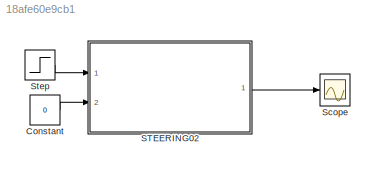
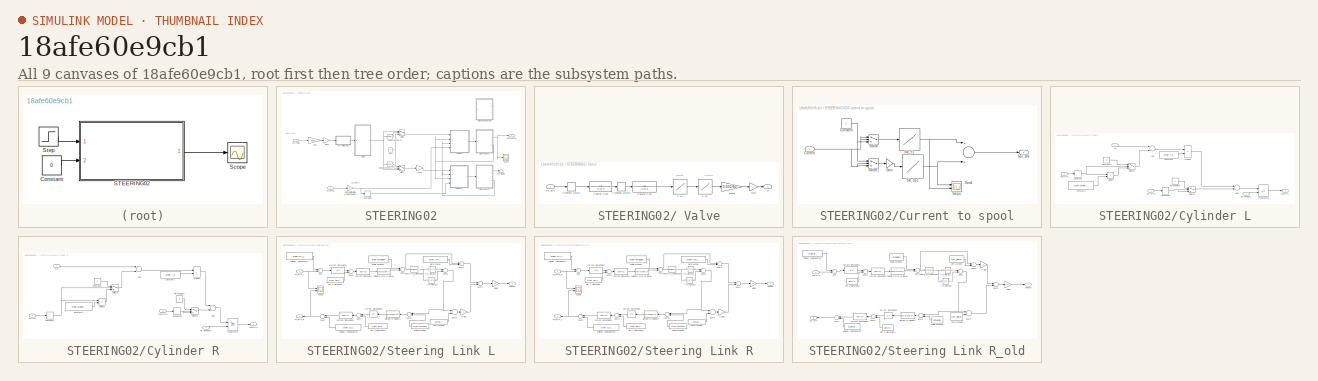
[diagram: thumbnail index - all 9 canvases of the model, root first then tree order]
MODEL slx_18afe60e9cb1
KIND model
CONFIG AbsTol = auto
CONFIG EnableMultiTasking = off
CONFIG FixedStep = auto
CONFIG MaxStep = auto
CONFIG MinStep = auto
CONFIG RelTol = 1e-3
CONFIG SampleTimeConstraint = Unconstrained
CONFIG Solver = VariableStepAuto
CONFIG SolverName = VariableStepAuto
CONFIG StartTime = 0.0
CONFIG StopTime = 10.0
BLOCK [Constant] Constant
  Value = 0
BLOCK [SubSystem] STEERING02
  Description = Current: STバルブスプール電流の (右出\nST_0: ステア角 初期値
  Ports = [2, 1]
  RequestExecContextInheritance = off
  ShowPortLabels = SignalName
BLOCK [SubSystem] STEERING02/ Valve
  Ports = [1, 1]
  RequestExecContextInheritance = off
BLOCK [Gain] STEERING02/ Valve/Gain
  Gain = 7
  OutDataTypeStr = Inherit: Inherit via internal rule
  ParamDataTypeStr = Inherit: Inherit via internal rule
  SaturateOnIntegerOverflow = off
BLOCK [Gain] STEERING02/ Valve/Gain5
  Gain = 0.001/60
BLOCK [Lookup] STEERING02/ Valve/P-L1
  InputValues = [-7 -6 -5.5 -5 -4 -3 -2 0 2 3 4 5 5.5 6 7]
  Table = [-35 -15 -9 -7.4 -4.2 -1.4 0 0 0 1.4 4.2 7.4 9 15 35]
BLOCK [Lookup] STEERING02/ Valve/P-L3
  InputValues = [-35 -15 -7.4 -5.8 -4.2 -2.8 -1.4 -0.7 -0.28 0 0.28 0.7 1.4 2.8 4.2 5.8 7.4 15 35]
  Table = [-35.5 -15.3 -9.7 -7.4 -5.4 -3.6 -2.15 -1.1 -0.6 0 0.6 1.1 2.15 3.6 5.4 7.4 9.7 15.3 35.5]
BLOCK [Outport] STEERING02/ Valve/Q
  IconDisplay = Port number
BLOCK [Inport] STEERING02/ Valve/Spl_strk
  IconDisplay = Port number
BLOCK [TransferFcn] STEERING02/ Valve/Transfer Fcn1
  Denominator = [0.02 1]
BLOCK [TransferFcn] STEERING02/ Valve/Transfer Fcn2
  Denominator = [0.06 1]
BLOCK [TransportDelay] STEERING02/ Valve/Transport Delay1
  DelayTime = 0.1
  Ports = [1, 1]
BLOCK [TransportDelay] STEERING02/ Valve/Transport Delay2
  DelayTime = 0.05
  Ports = [1, 1]
BLOCK [Reference] STEERING02/Compare To Zero1  REF=simulink/Logic and Bit
Operations/Compare
To Zero
  Ports = [1, 1]
  SourceBlock = simulink/Logic and Bit\nOperations/Compare\nTo Zero
  SourceProductBaseCode = SL
  SourceProductName = Simulink
  SourceType = Compare To Zero
BLOCK [Reference] STEERING02/Compare To Zero2  REF=simulink/Logic and Bit
Operations/Compare
To Zero
  Ports = [1, 1]
  SourceBlock = simulink/Logic and Bit\nOperations/Compare\nTo Zero
  SourceProductBaseCode = SL
  SourceProductName = Simulink
  SourceType = Compare To Zero
BLOCK [SubSystem] STEERING02/Current to spool
  Ports = [1, 1]
  RequestExecContextInheritance = off
BLOCK [Constant] STEERING02/Current to spool/Constant
  Value = 0
BLOCK [Inport] STEERING02/Current to spool/Current
  IconDisplay = Port number
BLOCK [Gain] STEERING02/Current to spool/Gain
  Gain = -1
  OutDataTypeStr = Inherit: Inherit via internal rule
  ParamDataTypeStr = Inherit: Inherit via internal rule
  SaturateOnIntegerOverflow = off
BLOCK [Scope] STEERING02/Current to spool/Scope
  Floating = off
  NumInputPorts = 2
  Ports = [2]
  ScopeSpecificationString = C++SS(StrPVP('Location','[1585, 68, 2247, 528]'),StrPVP('Open','off'),StrPVP('ZoomMode','yonly'),MxPVP('AxesTitles',53,'struct(''axes1'',''%<SignalLabel>'',''axes2'',''%<SignalLabel>'')'),StrPVP('YMin','-5~-5'),StrPVP('YMax','5~5'),StrPVP('SaveName','ScopeData4'),StrPVP('DataFormat','StructureWithTime'),StrPVP('BlockParamSampleTime','0'),StrPVP('LimitDataPoints','on'),StrPVP('Decimation','1'),StrP...<+34ch>
BLOCK [Outport] STEERING02/Current to spool/Spl_strk
  IconDisplay = Port number
BLOCK [Sum] STEERING02/Current to spool/Sum1
  InputSameDT = off
  OutDataTypeStr = Inherit: Inherit via internal rule
  Ports = [2, 1]
BLOCK [Switch] STEERING02/Current to spool/Switch
  InputSameDT = off
  SaturateOnIntegerOverflow = off
BLOCK [Switch] STEERING02/Current to spool/Switch1
  InputSameDT = off
  SaturateOnIntegerOverflow = off
BLOCK [Lookup] STEERING02/Current to spool/bkt_dp1
  InputValues = [0 400 450 500 550 600 650 1000]
  Table = [0 -2 -3 -4 -5 -6 -7 -7]
BLOCK [Lookup] STEERING02/Current to spool/bkt_tl1
  InputValues = [0 400 450 500 550 600 650 1000]
  Table = [0 2 3 4 5 6 7 7]
BLOCK [Inport] STEERING02/Current[A]
  IconDisplay = Port number
BLOCK [SubSystem] STEERING02/Cylinder L
  Ports = [4, 1]
  RequestExecContextInheritance = off
BLOCK [Sum] STEERING02/Cylinder L/Add
  InputSameDT = off
  OutDataTypeStr = Inherit: Inherit via internal rule
  Ports = [2, 1]
  SaturateOnIntegerOverflow = off
BLOCK [Sum] STEERING02/Cylinder L/Add1
  InputSameDT = off
  OutDataTypeStr = Inherit: Inherit via internal rule
  Ports = [2, 1]
  SaturateOnIntegerOverflow = off
BLOCK [Constant] STEERING02/Cylinder L/Constant3
  Value = steer.alpha*steer.Ap
BLOCK [Constant] STEERING02/Cylinder L/Constant5
  Value = steer.Ap
BLOCK [Constant] STEERING02/Cylinder L/Constant6
  Value = 0
BLOCK [Inport] STEERING02/Cylinder L/CylL strk1
  IconDisplay = Port number
  Port = 3
BLOCK [Inport] STEERING02/Cylinder L/CylR strk
  IconDisplay = Port number
  Port = 2
BLOCK [Outport] STEERING02/Cylinder L/Cyl_strk_L
  IconDisplay = Port number
BLOCK [Derivative] STEERING02/Cylinder L/Derivative
BLOCK [Derivative] STEERING02/Cylinder L/Derivative1
BLOCK [Product] STEERING02/Cylinder L/Divide1
  InputSameDT = off
  Inputs = **
  OutDataTypeStr = Inherit: Inherit via internal rule
  Ports = [2, 1]
  RndMeth = Floor
  SaturateOnIntegerOverflow = off
BLOCK [Integrator] STEERING02/Cylinder L/Integrator3
  InitialConditionSource = external
  LimitOutput = on
  LowerSaturationLimit = steer.xpmin
  Ports = [2, 1]
  UpperSaturationLimit = steer.xpmax
BLOCK [Product] STEERING02/Cylinder L/Product
  InputSameDT = off
  Inputs = */
  OutDataTypeStr = Inherit: Inherit via internal rule
  Ports = [2, 1]
  SaturateOnIntegerOverflow = off
BLOCK [Inport] STEERING02/Cylinder L/QL
  IconDisplay = Port number
BLOCK [Switch] STEERING02/Cylinder L/Switch1
  Criteria = u2 > Threshold
  InputSameDT = off
  SaturateOnIntegerOverflow = off
BLOCK [Switch] STEERING02/Cylinder L/Switch2
  Criteria = u2 > Threshold
  InputSameDT = off
  SaturateOnIntegerOverflow = off
BLOCK [Constant] STEERING02/Cylinder L/init position1
  Value = 0
BLOCK [Inport] STEERING02/Cylinder L/init positionL
  IconDisplay = Port number
  Port = 4
BLOCK [SubSystem] STEERING02/Cylinder R
  Ports = [4, 1]
  RequestExecContextInheritance = off
BLOCK [Sum] STEERING02/Cylinder R/Add
  InputSameDT = off
  OutDataTypeStr = Inherit: Inherit via internal rule
  Ports = [2, 1]
  SaturateOnIntegerOverflow = off
BLOCK [Sum] STEERING02/Cylinder R/Add1
  InputSameDT = off
  OutDataTypeStr = Inherit: Inherit via internal rule
  Ports = [2, 1]
  SaturateOnIntegerOverflow = off
BLOCK [Constant] STEERING02/Cylinder R/Constant3
  Value = steer.alpha*steer.Ap
BLOCK [Constant] STEERING02/Cylinder R/Constant5
  Value = steer.Ap
BLOCK [Constant] STEERING02/Cylinder R/Constant6
  Value = 0
BLOCK [Inport] STEERING02/Cylinder R/CylL strk
  IconDisplay = Port number
  Port = 2
BLOCK [Outport] STEERING02/Cylinder R/CylR strk
  IconDisplay = Port number
BLOCK [Inport] STEERING02/Cylinder R/CylR strk1
  IconDisplay = Port number
  Port = 3
BLOCK [Derivative] STEERING02/Cylinder R/Derivative
BLOCK [Derivative] STEERING02/Cylinder R/Derivative1
BLOCK [Product] STEERING02/Cylinder R/Divide1
  InputSameDT = off
  Inputs = **
  OutDataTypeStr = Inherit: Inherit via internal rule
  Ports = [2, 1]
  RndMeth = Floor
  SaturateOnIntegerOverflow = off
BLOCK [Integrator] STEERING02/Cylinder R/Integrator3
  InitialConditionSource = external
  LimitOutput = on
  LowerSaturationLimit = steer.xpmin
  Ports = [2, 1]
  UpperSaturationLimit = steer.xpmax
BLOCK [Product] STEERING02/Cylinder R/Product
  InputSameDT = off
  Inputs = */
  OutDataTypeStr = Inherit: Inherit via internal rule
  Ports = [2, 1]
  SaturateOnIntegerOverflow = off
BLOCK [Inport] STEERING02/Cylinder R/QR
  IconDisplay = Port number
BLOCK [Switch] STEERING02/Cylinder R/Switch1
  Criteria = u2 > Threshold
  InputSameDT = off
  SaturateOnIntegerOverflow = off
BLOCK [Switch] STEERING02/Cylinder R/Switch2
  Criteria = u2 > Threshold
  InputSameDT = off
  SaturateOnIntegerOverflow = off
BLOCK [Constant] STEERING02/Cylinder R/init position1
  Value = 0
BLOCK [Inport] STEERING02/Cylinder R/init positionR
  IconDisplay = Port number
  Port = 4
BLOCK [Gain] STEERING02/Gain
  Gain = 1000
  OutDataTypeStr = Inherit: Inherit via internal rule
  ParamDataTypeStr = Inherit: Inherit via internal rule
  SaturateOnIntegerOverflow = off
BLOCK [Gain] STEERING02/Gain2
  Gain = -1
  OutDataTypeStr = Inherit: Inherit via internal rule
  ParamDataTypeStr = Inherit: Inherit via internal rule
  SaturateOnIntegerOverflow = off
BLOCK [Gain] STEERING02/Gain5
  Gain = -1
  OutDataTypeStr = Inherit: Inherit via internal rule
  ParamDataTypeStr = Inherit: Inherit via internal rule
  SaturateOnIntegerOverflow = off
BLOCK [Gain] STEERING02/Rad To initPositionL (Magic Number)
  Gain = 0.5
  OutDataTypeStr = Inherit: Inherit via internal rule
  ParamDataTypeStr = Inherit: Inherit via internal rule
  SaturateOnIntegerOverflow = off
BLOCK [Inport] STEERING02/ST_0 [rad]
  IconDisplay = Port number
  Port = 2
BLOCK [Scope] STEERING02/Scope
  Floating = off
  NumInputPorts = 1
  Ports = [1]
  ScopeSpecificationString = C++SS(StrPVP('Location','[613, 208, 1275, 668]'),StrPVP('Open','off'),StrPVP('ZoomMode','yonly'),MxPVP('AxesTitles',53,'struct(''axes1'',''%<SignalLabel>'')'),MxPVP('ScopeGraphics',56,'struct(''FigureColor'',''[0.5 0.5 0.5]'',''AxesColor'',''[0 0 0]'',''AxesTickColor'',''[1 1 1]'',''LineColors'',''[1 1 0;1 0 1;0 1 1;1 0 0;0 1 0;0 0 1]'',''LineStyles'',''-|-|-|-|-|-'',''LineWidths'',''[0.5 0.5 0.5 ...<+271ch>
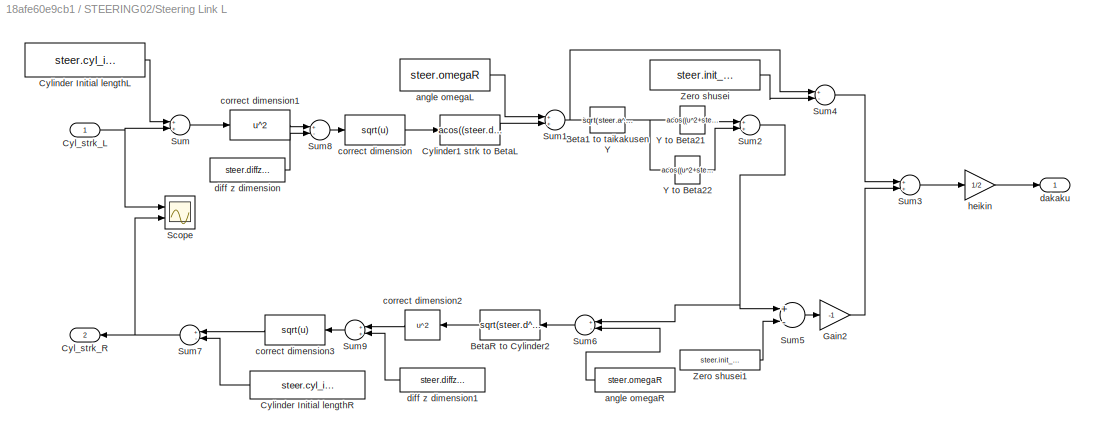
BLOCK [SubSystem] STEERING02/Steering Link L
  Ports = [1, 2]
  RequestExecContextInheritance = off
BLOCK [Fcn] STEERING02/Steering Link L/Beta1 to taikakusenY
  Expr = sqrt(steer.a^2+steer.b^2-2*steer.a*steer.b*cos(u))
BLOCK [Fcn] STEERING02/Steering Link L/BetaR to Cylinder2
  Expr = sqrt(steer.d^2+steer.e^2-2*steer.d*steer.e*cos(u))
BLOCK [Inport] STEERING02/Steering Link L/Cyl_strk_L
  IconDisplay = Port number
BLOCK [Outport] STEERING02/Steering Link L/Cyl_strk_R
  IconDisplay = Port number
  Port = 2
BLOCK [Constant] STEERING02/Steering Link L/Cylinder Initial lengthL
  Value = steer.cyl_init_length
BLOCK [Constant] STEERING02/Steering Link L/Cylinder Initial lengthR
  Value = steer.cyl_init_length
BLOCK [Fcn] STEERING02/Steering Link L/Cylinder1 strk to BetaL
  Expr = acos((steer.d^2+steer.e^2-u^2)/(2*steer.d*steer.e))
BLOCK [Gain] STEERING02/Steering Link L/Gain2
  Gain = -1
  OutDataTypeStr = Inherit: Inherit via internal rule
  ParamDataTypeStr = Inherit: Inherit via internal rule
  SaturateOnIntegerOverflow = off
BLOCK [Scope] STEERING02/Steering Link L/Scope
  Floating = off
  NumInputPorts = 2
  Ports = [2]
  ScopeSpecificationString = C++SS(StrPVP('Location','[280, 216, 942, 676]'),StrPVP('Open','off'),StrPVP('ZoomMode','yonly'),MxPVP('AxesTitles',53,'struct(''axes1'',''%<SignalLabel>'',''axes2'',''%<SignalLabel>'')'),StrPVP('YMin','-5~-5'),StrPVP('YMax','5~5'),StrPVP('SaveName','ScopeData2'),StrPVP('DataFormat','StructureWithTime'),StrPVP('BlockParamSampleTime','0'),StrPVP('LimitDataPoints','on'),StrPVP('Decimation','1'),StrPV...<+33ch>
BLOCK [Sum] STEERING02/Steering Link L/Sum
  InputSameDT = off
  OutDataTypeStr = Inherit: Inherit via internal rule
  Ports = [2, 1]
  SaturateOnIntegerOverflow = off
BLOCK [Sum] STEERING02/Steering Link L/Sum1
  InputSameDT = off
  OutDataTypeStr = Inherit: Inherit via internal rule
  Ports = [2, 1]
  SaturateOnIntegerOverflow = off
BLOCK [Sum] STEERING02/Steering Link L/Sum2
  InputSameDT = off
  OutDataTypeStr = Inherit: Inherit via internal rule
  Ports = [2, 1]
  SaturateOnIntegerOverflow = off
BLOCK [Sum] STEERING02/Steering Link L/Sum3
  InputSameDT = off
  OutDataTypeStr = Inherit: Inherit via internal rule
  Ports = [2, 1]
  SaturateOnIntegerOverflow = off
BLOCK [Sum] STEERING02/Steering Link L/Sum4
  InputSameDT = off
  Inputs = +-
  OutDataTypeStr = Inherit: Inherit via internal rule
  Ports = [2, 1]
  SaturateOnIntegerOverflow = off
BLOCK [Sum] STEERING02/Steering Link L/Sum5
  InputSameDT = off
  Inputs = +-
  OutDataTypeStr = Inherit: Inherit via internal rule
  Ports = [2, 1]
  SaturateOnIntegerOverflow = off
BLOCK [Sum] STEERING02/Steering Link L/Sum6
  InputSameDT = off
  Inputs = +-
  OutDataTypeStr = Inherit: Inherit via internal rule
  Ports = [2, 1]
  SaturateOnIntegerOverflow = off
BLOCK [Sum] STEERING02/Steering Link L/Sum7
  InputSameDT = off
  Inputs = +-
  OutDataTypeStr = Inherit: Inherit via internal rule
  Ports = [2, 1]
  SaturateOnIntegerOverflow = off
BLOCK [Sum] STEERING02/Steering Link L/Sum8
  InputSameDT = off
  Inputs = +-
  OutDataTypeStr = Inherit: Inherit via internal rule
  Ports = [2, 1]
  SaturateOnIntegerOverflow = off
BLOCK [Sum] STEERING02/Steering Link L/Sum9
  InputSameDT = off
  OutDataTypeStr = Inherit: Inherit via internal rule
  Ports = [2, 1]
  SaturateOnIntegerOverflow = off
BLOCK [Fcn] STEERING02/Steering Link L/Y to Beta21
  Expr = acos((u^2+steer.a^2-steer.c^2)/(2*steer.a*u))
BLOCK [Fcn] STEERING02/Steering Link L/Y to Beta22
  Expr = acos((u^2+steer.b^2-steer.a^2)/(2*steer.b*u))
BLOCK [Constant] STEERING02/Steering Link L/Zero shusei
  Value = steer.init_beta1
BLOCK [Constant] STEERING02/Steering Link L/Zero shusei1
  Value = steer.init_beta1
BLOCK [Constant] STEERING02/Steering Link L/angle omegaL
  Value = steer.omegaR
BLOCK [Constant] STEERING02/Steering Link L/angle omegaR
  Value = steer.omegaR
BLOCK [Fcn] STEERING02/Steering Link L/correct dimension
  Expr = sqrt(u)
BLOCK [Fcn] STEERING02/Steering Link L/correct dimension1
  Expr = u^2
BLOCK [Fcn] STEERING02/Steering Link L/correct dimension2
  Expr = u^2
BLOCK [Fcn] STEERING02/Steering Link L/correct dimension3
  Expr = sqrt(u)
BLOCK [Outport] STEERING02/Steering Link L/dakaku
  IconDisplay = Port number
BLOCK [Constant] STEERING02/Steering Link L/diff z dimension
  Value = steer.diffz^2
BLOCK [Constant] STEERING02/Steering Link L/diff z dimension1
  Value = steer.diffz^2
BLOCK [Gain] STEERING02/Steering Link L/heikin
  Gain = 1/2
  OutDataTypeStr = Inherit: Inherit via internal rule
  ParamDataTypeStr = Inherit: Inherit via internal rule
  SaturateOnIntegerOverflow = off
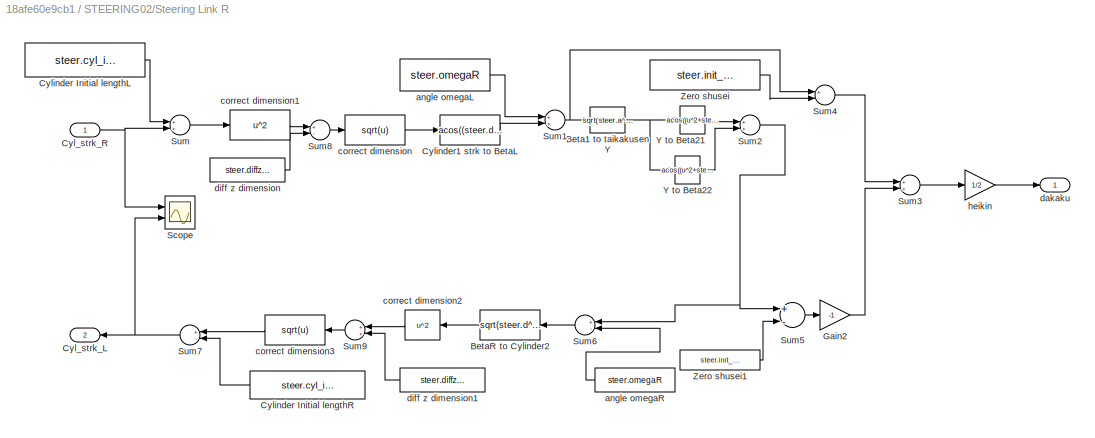
BLOCK [SubSystem] STEERING02/Steering Link R
  Ports = [1, 2]
  RequestExecContextInheritance = off
BLOCK [Fcn] STEERING02/Steering Link R/Beta1 to taikakusenY
  Expr = sqrt(steer.a^2+steer.b^2-2*steer.a*steer.b*cos(u))
BLOCK [Fcn] STEERING02/Steering Link R/BetaR to Cylinder2
  Expr = sqrt(steer.d^2+steer.e^2-2*steer.d*steer.e*cos(u))
BLOCK [Outport] STEERING02/Steering Link R/Cyl_strk_L
  IconDisplay = Port number
  Port = 2
BLOCK [Inport] STEERING02/Steering Link R/Cyl_strk_R
  IconDisplay = Port number
BLOCK [Constant] STEERING02/Steering Link R/Cylinder Initial lengthL
  Value = steer.cyl_init_length
BLOCK [Constant] STEERING02/Steering Link R/Cylinder Initial lengthR
  Value = steer.cyl_init_length
BLOCK [Fcn] STEERING02/Steering Link R/Cylinder1 strk to BetaL
  Expr = acos((steer.d^2+steer.e^2-u^2)/(2*steer.d*steer.e))
BLOCK [Gain] STEERING02/Steering Link R/Gain2
  Gain = -1
  OutDataTypeStr = Inherit: Inherit via internal rule
  ParamDataTypeStr = Inherit: Inherit via internal rule
  SaturateOnIntegerOverflow = off
BLOCK [Scope] STEERING02/Steering Link R/Scope
  Floating = off
  NumInputPorts = 2
  Ports = [2]
  ScopeSpecificationString = C++SS(StrPVP('Location','[280, 216, 942, 676]'),StrPVP('Open','off'),StrPVP('ZoomMode','yonly'),MxPVP('AxesTitles',53,'struct(''axes1'',''%<SignalLabel>'',''axes2'',''%<SignalLabel>'')'),StrPVP('YMin','-5~-5'),StrPVP('YMax','5~5'),StrPVP('SaveName','ScopeData2'),StrPVP('DataFormat','StructureWithTime'),StrPVP('BlockParamSampleTime','0'),StrPVP('LimitDataPoints','on'),StrPVP('Decimation','1'),StrPV...<+33ch>
BLOCK [Sum] STEERING02/Steering Link R/Sum
  InputSameDT = off
  OutDataTypeStr = Inherit: Inherit via internal rule
  Ports = [2, 1]
  SaturateOnIntegerOverflow = off
BLOCK [Sum] STEERING02/Steering Link R/Sum1
  InputSameDT = off
  OutDataTypeStr = Inherit: Inherit via internal rule
  Ports = [2, 1]
  SaturateOnIntegerOverflow = off
BLOCK [Sum] STEERING02/Steering Link R/Sum2
  InputSameDT = off
  OutDataTypeStr = Inherit: Inherit via internal rule
  Ports = [2, 1]
  SaturateOnIntegerOverflow = off
BLOCK [Sum] STEERING02/Steering Link R/Sum3
  InputSameDT = off
  OutDataTypeStr = Inherit: Inherit via internal rule
  Ports = [2, 1]
  SaturateOnIntegerOverflow = off
BLOCK [Sum] STEERING02/Steering Link R/Sum4
  InputSameDT = off
  Inputs = +-
  OutDataTypeStr = Inherit: Inherit via internal rule
  Ports = [2, 1]
  SaturateOnIntegerOverflow = off
BLOCK [Sum] STEERING02/Steering Link R/Sum5
  InputSameDT = off
  Inputs = +-
  OutDataTypeStr = Inherit: Inherit via internal rule
  Ports = [2, 1]
  SaturateOnIntegerOverflow = off
BLOCK [Sum] STEERING02/Steering Link R/Sum6
  InputSameDT = off
  Inputs = +-
  OutDataTypeStr = Inherit: Inherit via internal rule
  Ports = [2, 1]
  SaturateOnIntegerOverflow = off
BLOCK [Sum] STEERING02/Steering Link R/Sum7
  InputSameDT = off
  Inputs = +-
  OutDataTypeStr = Inherit: Inherit via internal rule
  Ports = [2, 1]
  SaturateOnIntegerOverflow = off
BLOCK [Sum] STEERING02/Steering Link R/Sum8
  InputSameDT = off
  Inputs = +-
  OutDataTypeStr = Inherit: Inherit via internal rule
  Ports = [2, 1]
  SaturateOnIntegerOverflow = off
BLOCK [Sum] STEERING02/Steering Link R/Sum9
  InputSameDT = off
  OutDataTypeStr = Inherit: Inherit via internal rule
  Ports = [2, 1]
  SaturateOnIntegerOverflow = off
BLOCK [Fcn] STEERING02/Steering Link R/Y to Beta21
  Expr = acos((u^2+steer.a^2-steer.c^2)/(2*steer.a*u))
BLOCK [Fcn] STEERING02/Steering Link R/Y to Beta22
  Expr = acos((u^2+steer.b^2-steer.a^2)/(2*steer.b*u))
BLOCK [Constant] STEERING02/Steering Link R/Zero shusei
  Value = steer.init_beta1
BLOCK [Constant] STEERING02/Steering Link R/Zero shusei1
  Value = steer.init_beta1
BLOCK [Constant] STEERING02/Steering Link R/angle omegaL
  Value = steer.omegaR
BLOCK [Constant] STEERING02/Steering Link R/angle omegaR
  Value = steer.omegaR
BLOCK [Fcn] STEERING02/Steering Link R/correct dimension
  Expr = sqrt(u)
BLOCK [Fcn] STEERING02/Steering Link R/correct dimension1
  Expr = u^2
BLOCK [Fcn] STEERING02/Steering Link R/correct dimension2
  Expr = u^2
BLOCK [Fcn] STEERING02/Steering Link R/correct dimension3
  Expr = sqrt(u)
BLOCK [Outport] STEERING02/Steering Link R/dakaku
  IconDisplay = Port number
BLOCK [Constant] STEERING02/Steering Link R/diff z dimension
  Value = steer.diffz^2
BLOCK [Constant] STEERING02/Steering Link R/diff z dimension1
  Value = steer.diffz^2
BLOCK [Gain] STEERING02/Steering Link R/heikin
  Gain = 1/2
  OutDataTypeStr = Inherit: Inherit via internal rule
  ParamDataTypeStr = Inherit: Inherit via internal rule
  SaturateOnIntegerOverflow = off
BLOCK [SubSystem] STEERING02/Steering Link R_old
  Ports = [1, 2]
  RequestExecContextInheritance = off
BLOCK [Fcn] STEERING02/Steering Link R_old/Beta1 to taikakusenY
  Expr = sqrt(a^2+b^2-2*a*b*cos(u))
BLOCK [Fcn] STEERING02/Steering Link R_old/BetaR to Cylinder2
  Expr = sqrt(d^2+e^2-2*d*e*cos(u))
BLOCK [Outport] STEERING02/Steering Link R_old/CylL strk
  IconDisplay = Port number
  Port = 2
BLOCK [Inport] STEERING02/Steering Link R_old/CylR strk
  IconDisplay = Port number
BLOCK [Constant] STEERING02/Steering Link R_old/Cylinder Initial lengthL
  Value = cyl_init_length
BLOCK [Constant] STEERING02/Steering Link R_old/Cylinder Initial lengthR
  Value = cyl_init_length
BLOCK [Fcn] STEERING02/Steering Link R_old/Cylinder1 strk to BetaL
  Expr = acos((d^2+e^2-u^2)/(2*d*e))
BLOCK [Gain] STEERING02/Steering Link R_old/Gain2
  Gain = -1
  OutDataTypeStr = Inherit: Inherit via internal rule
  ParamDataTypeStr = Inherit: Inherit via internal rule
  SaturateOnIntegerOverflow = off
BLOCK [Sum] STEERING02/Steering Link R_old/Sum
  InputSameDT = off
  OutDataTypeStr = Inherit: Inherit via internal rule
  Ports = [2, 1]
  SaturateOnIntegerOverflow = off
BLOCK [Sum] STEERING02/Steering Link R_old/Sum1
  InputSameDT = off
  OutDataTypeStr = Inherit: Inherit via internal rule
  Ports = [2, 1]
  SaturateOnIntegerOverflow = off
BLOCK [Sum] STEERING02/Steering Link R_old/Sum2
  InputSameDT = off
  OutDataTypeStr = Inherit: Inherit via internal rule
  Ports = [2, 1]
  SaturateOnIntegerOverflow = off
BLOCK [Sum] STEERING02/Steering Link R_old/Sum3
  InputSameDT = off
  OutDataTypeStr = Inherit: Inherit via internal rule
  Ports = [2, 1]
  SaturateOnIntegerOverflow = off
BLOCK [Sum] STEERING02/Steering Link R_old/Sum4
  InputSameDT = off
  Inputs = +-
  OutDataTypeStr = Inherit: Inherit via internal rule
  Ports = [2, 1]
  SaturateOnIntegerOverflow = off
BLOCK [Sum] STEERING02/Steering Link R_old/Sum5
  InputSameDT = off
  Inputs = +-
  OutDataTypeStr = Inherit: Inherit via internal rule
  Ports = [2, 1]
  SaturateOnIntegerOverflow = off
BLOCK [Sum] STEERING02/Steering Link R_old/Sum6
  InputSameDT = off
  Inputs = +-
  OutDataTypeStr = Inherit: Inherit via internal rule
  Ports = [2, 1]
  SaturateOnIntegerOverflow = off
BLOCK [Sum] STEERING02/Steering Link R_old/Sum7
  InputSameDT = off
  Inputs = +-
  OutDataTypeStr = Inherit: Inherit via internal rule
  Ports = [2, 1]
  SaturateOnIntegerOverflow = off
BLOCK [Sum] STEERING02/Steering Link R_old/Sum8
  InputSameDT = off
  Inputs = +-
  OutDataTypeStr = Inherit: Inherit via internal rule
  Ports = [2, 1]
  SaturateOnIntegerOverflow = off
BLOCK [Sum] STEERING02/Steering Link R_old/Sum9
  InputSameDT = off
  OutDataTypeStr = Inherit: Inherit via internal rule
  Ports = [2, 1]
  SaturateOnIntegerOverflow = off
BLOCK [Fcn] STEERING02/Steering Link R_old/Y to Beta21
  Expr = acos((u^2+a^2-c^2)/(2*a*u))
BLOCK [Fcn] STEERING02/Steering Link R_old/Y to Beta22
  Expr = acos((u^2+b^2-a^2)/(2*b*u))
BLOCK [Constant] STEERING02/Steering Link R_old/Zero shusei
  Value = init_beta1
BLOCK [Constant] STEERING02/Steering Link R_old/Zero shusei1
  Value = init_beta1
BLOCK [Constant] STEERING02/Steering Link R_old/angle omegaL
  Value = omegaR
BLOCK [Constant] STEERING02/Steering Link R_old/angle omegaR
  Value = omegaR
BLOCK [Fcn] STEERING02/Steering Link R_old/correct dimension
  Expr = sqrt(u)
BLOCK [Fcn] STEERING02/Steering Link R_old/correct dimension1
  Expr = u^2
BLOCK [Fcn] STEERING02/Steering Link R_old/correct dimension2
  Expr = u^2
BLOCK [Fcn] STEERING02/Steering Link R_old/correct dimension3
  Expr = sqrt(u)
BLOCK [Outport] STEERING02/Steering Link R_old/dakaku
  IconDisplay = Port number
BLOCK [Constant] STEERING02/Steering Link R_old/diff z dimension
  Value = diffz^2
BLOCK [Constant] STEERING02/Steering Link R_old/diff z dimension1
  Value = diffz^2
BLOCK [Gain] STEERING02/Steering Link R_old/heikin
  Gain = 1/2
  OutDataTypeStr = Inherit: Inherit via internal rule
  ParamDataTypeStr = Inherit: Inherit via internal rule
  SaturateOnIntegerOverflow = off
BLOCK [Switch] STEERING02/Switch
  InputSameDT = off
  SaturateOnIntegerOverflow = off
BLOCK [Switch] STEERING02/Switch1
  InputSameDT = off
  SaturateOnIntegerOverflow = off
BLOCK [Terminator] STEERING02/Terminator
BLOCK [UnaryMinus] STEERING02/Unary Minus
BLOCK [Outport] STEERING02/dakaku[rad]
  IconDisplay = Port number
BLOCK [Constant] STEERING02/zero
  Value = 0
BLOCK [Scope] Scope
  Floating = off
  NumInputPorts = 1
  Ports = [1]
  ScopeSpecificationString = Simulink.scopes.TimeScopeBlockCfg('CurrentConfiguration', extmgr.ConfigurationSet(extmgr.Configuration('Core','General UI',true),extmgr.Configuration('Core','Source UI',true),extmgr.Configuration('Sources','WiredSimulink',true),extmgr.Configuration('Visuals','Time Domain',true),extmgr.Configuration('Tools','Plot Navigation',true),extmgr.Configuration('Tools','Measurements',true)),'Version','2018b'...<+1ch>
BLOCK [Step] Step
  SampleTime = 0
ANNOTATION STEERING02: ST(R) - ST(L)
ANNOTATION STEERING02: init_potision L
ANNOTATION STEERING02/ Valve: [L/min]
ANNOTATION STEERING02/ Valve: [mm2]
LINE Constant:1 -> STEERING02:2
LINE STEERING02/ Valve/Gain5:1 -> STEERING02/ Valve/Gain:1
LINE STEERING02/ Valve/Gain:1 -> STEERING02/ Valve/Q:1
LINE STEERING02/ Valve/P-L1:1 -> STEERING02/ Valve/P-L3:1
LINE STEERING02/ Valve/P-L3:1 -> STEERING02/ Valve/Gain5:1
LINE STEERING02/ Valve/Spl_strk:1 -> STEERING02/ Valve/Transport Delay1:1
LINE STEERING02/ Valve/Transfer Fcn1:1 -> STEERING02/ Valve/P-L1:1
LINE STEERING02/ Valve/Transfer Fcn2:1 -> STEERING02/ Valve/Transport Delay2:1
LINE STEERING02/ Valve/Transport Delay1:1 -> STEERING02/ Valve/Transfer Fcn2:1
LINE STEERING02/ Valve/Transport Delay2:1 -> STEERING02/ Valve/Transfer Fcn1:1
NET STEERING02/ Valve:1 -> STEERING02/Compare To Zero1:1, STEERING02/Compare To Zero2:1, STEERING02/Switch1:3, STEERING02/Switch:1
LINE STEERING02/Compare To Zero1:1 -> STEERING02/Switch:2
LINE STEERING02/Compare To Zero2:1 -> STEERING02/Switch1:2
NET STEERING02/Current to spool/Constant:1 -> STEERING02/Current to spool/Switch1:1, STEERING02/Current to spool/Switch:3
NET STEERING02/Current to spool/Current:1 -> STEERING02/Current to spool/Switch1:2, STEERING02/Current to spool/Switch1:3, STEERING02/Current to spool/Switch:1, STEERING02/Current to spool/Switch:2
LINE STEERING02/Current to spool/Gain:1 -> STEERING02/Current to spool/bkt_dp1:1
LINE STEERING02/Current to spool/Sum1:1 -> STEERING02/Current to spool/Spl_strk:1
LINE STEERING02/Current to spool/Switch1:1 -> STEERING02/Current to spool/Gain:1
LINE STEERING02/Current to spool/Switch:1 -> STEERING02/Current to spool/bkt_tl1:1
NET STEERING02/Current to spool/bkt_dp1:1 -> STEERING02/Current to spool/Scope:1, STEERING02/Current to spool/Sum1:2
NET STEERING02/Current to spool/bkt_tl1:1 -> STEERING02/Current to spool/Scope:2, STEERING02/Current to spool/Sum1:1
LINE STEERING02/Current to spool:1 -> STEERING02/ Valve:1
LINE STEERING02/Current[A]:1 -> STEERING02/Gain:1
LINE STEERING02/Cylinder L/Add1:1 -> STEERING02/Cylinder L/Integrator3:1
LINE STEERING02/Cylinder L/Add:1 -> STEERING02/Cylinder L/Product:1
LINE STEERING02/Cylinder L/Constant3:1 -> STEERING02/Cylinder L/Divide1:2
LINE STEERING02/Cylinder L/Constant5:1 -> STEERING02/Cylinder L/Product:2
LINE STEERING02/Cylinder L/Constant6:1 -> STEERING02/Cylinder L/Switch1:1
LINE STEERING02/Cylinder L/CylL strk1:1 -> STEERING02/Cylinder L/Derivative1:1
LINE STEERING02/Cylinder L/CylR strk:1 -> STEERING02/Cylinder L/Derivative:1
NET STEERING02/Cylinder L/Derivative1:1 -> STEERING02/Cylinder L/Switch2:2, STEERING02/Cylinder L/Switch2:3
NET STEERING02/Cylinder L/Derivative:1 -> STEERING02/Cylinder L/Divide1:1, STEERING02/Cylinder L/Switch1:2
LINE STEERING02/Cylinder L/Divide1:1 -> STEERING02/Cylinder L/Switch1:3
LINE STEERING02/Cylinder L/Integrator3:1 -> STEERING02/Cylinder L/Cyl_strk_L:1
LINE STEERING02/Cylinder L/Product:1 -> STEERING02/Cylinder L/Add1:1
LINE STEERING02/Cylinder L/QL:1 -> STEERING02/Cylinder L/Add:1
LINE STEERING02/Cylinder L/Switch1:1 -> STEERING02/Cylinder L/Add:2
LINE STEERING02/Cylinder L/Switch2:1 -> STEERING02/Cylinder L/Add1:2
LINE STEERING02/Cylinder L/init position1:1 -> STEERING02/Cylinder L/Switch2:1
LINE STEERING02/Cylinder L/init positionL:1 -> STEERING02/Cylinder L/Integrator3:2
LINE STEERING02/Cylinder L:1 -> STEERING02/Steering Link L:1
LINE STEERING02/Cylinder R/Add1:1 -> STEERING02/Cylinder R/Integrator3:1
LINE STEERING02/Cylinder R/Add:1 -> STEERING02/Cylinder R/Product:1
LINE STEERING02/Cylinder R/Constant3:1 -> STEERING02/Cylinder R/Divide1:2
LINE STEERING02/Cylinder R/Constant5:1 -> STEERING02/Cylinder R/Product:2
LINE STEERING02/Cylinder R/Constant6:1 -> STEERING02/Cylinder R/Switch1:1
LINE STEERING02/Cylinder R/CylL strk:1 -> STEERING02/Cylinder R/Derivative:1
LINE STEERING02/Cylinder R/CylR strk1:1 -> STEERING02/Cylinder R/Derivative1:1
NET STEERING02/Cylinder R/Derivative1:1 -> STEERING02/Cylinder R/Switch2:2, STEERING02/Cylinder R/Switch2:3
NET STEERING02/Cylinder R/Derivative:1 -> STEERING02/Cylinder R/Divide1:1, STEERING02/Cylinder R/Switch1:2
LINE STEERING02/Cylinder R/Divide1:1 -> STEERING02/Cylinder R/Switch1:3
LINE STEERING02/Cylinder R/Integrator3:1 -> STEERING02/Cylinder R/CylR strk:1
LINE STEERING02/Cylinder R/Product:1 -> STEERING02/Cylinder R/Add1:1
LINE STEERING02/Cylinder R/QR:1 -> STEERING02/Cylinder R/Add:1
LINE STEERING02/Cylinder R/Switch1:1 -> STEERING02/Cylinder R/Add:2
LINE STEERING02/Cylinder R/Switch2:1 -> STEERING02/Cylinder R/Add1:2
LINE STEERING02/Cylinder R/init position1:1 -> STEERING02/Cylinder R/Switch2:1
LINE STEERING02/Cylinder R/init positionR:1 -> STEERING02/Cylinder R/Integrator3:2
LINE STEERING02/Cylinder R:1 -> STEERING02/Steering Link R:1
LINE STEERING02/Gain2:1 -> STEERING02/Cylinder R:1
LINE STEERING02/Gain5:1 -> STEERING02/Current to spool:1
LINE STEERING02/Gain:1 -> STEERING02/Gain5:1
NET STEERING02/Rad To initPositionL (Magic Number):1 -> STEERING02/Cylinder L:4, STEERING02/Unary Minus:1
LINE STEERING02/ST_0 [rad]:1 -> STEERING02/Rad To initPositionL (Magic Number):1
NET STEERING02/Steering Link L/Beta1 to taikakusenY:1 -> STEERING02/Steering Link L/Y to Beta21:1, STEERING02/Steering Link L/Y to Beta22:1
LINE STEERING02/Steering Link L/BetaR to Cylinder2:1 -> STEERING02/Steering Link L/correct dimension2:1
NET STEERING02/Steering Link L/Cyl_strk_L:1 -> STEERING02/Steering Link L/Scope:1, STEERING02/Steering Link L/Sum:2
LINE STEERING02/Steering Link L/Cylinder Initial lengthL:1 -> STEERING02/Steering Link L/Sum:1
LINE STEERING02/Steering Link L/Cylinder Initial lengthR:1 -> STEERING02/Steering Link L/Sum7:2
LINE STEERING02/Steering Link L/Cylinder1 strk to BetaL:1 -> STEERING02/Steering Link L/Sum1:2
LINE STEERING02/Steering Link L/Gain2:1 -> STEERING02/Steering Link L/Sum3:2
NET STEERING02/Steering Link L/Sum1:1 -> STEERING02/Steering Link L/Beta1 to taikakusenY:1, STEERING02/Steering Link L/Sum4:1
NET STEERING02/Steering Link L/Sum2:1 -> STEERING02/Steering Link L/Sum5:1, STEERING02/Steering Link L/Sum6:1
LINE STEERING02/Steering Link L/Sum3:1 -> STEERING02/Steering Link L/heikin:1
LINE STEERING02/Steering Link L/Sum4:1 -> STEERING02/Steering Link L/Sum3:1
LINE STEERING02/Steering Link L/Sum5:1 -> STEERING02/Steering Link L/Gain2:1
LINE STEERING02/Steering Link L/Sum6:1 -> STEERING02/Steering Link L/BetaR to Cylinder2:1
NET STEERING02/Steering Link L/Sum7:1 -> STEERING02/Steering Link L/Cyl_strk_R:1, STEERING02/Steering Link L/Scope:2
LINE STEERING02/Steering Link L/Sum8:1 -> STEERING02/Steering Link L/correct dimension:1
LINE STEERING02/Steering Link L/Sum9:1 -> STEERING02/Steering Link L/correct dimension3:1
LINE STEERING02/Steering Link L/Sum:1 -> STEERING02/Steering Link L/correct dimension1:1
LINE STEERING02/Steering Link L/Y to Beta21:1 -> STEERING02/Steering Link L/Sum2:1
LINE STEERING02/Steering Link L/Y to Beta22:1 -> STEERING02/Steering Link L/Sum2:2
LINE STEERING02/Steering Link L/Zero shusei1:1 -> STEERING02/Steering Link L/Sum5:2
LINE STEERING02/Steering Link L/Zero shusei:1 -> STEERING02/Steering Link L/Sum4:2
LINE STEERING02/Steering Link L/angle omegaL:1 -> STEERING02/Steering Link L/Sum1:1
LINE STEERING02/Steering Link L/angle omegaR:1 -> STEERING02/Steering Link L/Sum6:2
LINE STEERING02/Steering Link L/correct dimension1:1 -> STEERING02/Steering Link L/Sum8:1
LINE STEERING02/Steering Link L/correct dimension2:1 -> STEERING02/Steering Link L/Sum9:1
LINE STEERING02/Steering Link L/correct dimension3:1 -> STEERING02/Steering Link L/Sum7:1
LINE STEERING02/Steering Link L/correct dimension:1 -> STEERING02/Steering Link L/Cylinder1 strk to BetaL:1
LINE STEERING02/Steering Link L/diff z dimension1:1 -> STEERING02/Steering Link L/Sum9:2
LINE STEERING02/Steering Link L/diff z dimension:1 -> STEERING02/Steering Link L/Sum8:2
LINE STEERING02/Steering Link L/heikin:1 -> STEERING02/Steering Link L/dakaku:1
NET STEERING02/Steering Link L:1 -> STEERING02/Scope:1, STEERING02/dakaku[rad]:1
NET STEERING02/Steering Link L:2 -> STEERING02/Cylinder L:2, STEERING02/Cylinder R:3
NET STEERING02/Steering Link R/Beta1 to taikakusenY:1 -> STEERING02/Steering Link R/Y to Beta21:1, STEERING02/Steering Link R/Y to Beta22:1
LINE STEERING02/Steering Link R/BetaR to Cylinder2:1 -> STEERING02/Steering Link R/correct dimension2:1
NET STEERING02/Steering Link R/Cyl_strk_R:1 -> STEERING02/Steering Link R/Scope:1, STEERING02/Steering Link R/Sum:2
LINE STEERING02/Steering Link R/Cylinder Initial lengthL:1 -> STEERING02/Steering Link R/Sum:1
LINE STEERING02/Steering Link R/Cylinder Initial lengthR:1 -> STEERING02/Steering Link R/Sum7:2
LINE STEERING02/Steering Link R/Cylinder1 strk to BetaL:1 -> STEERING02/Steering Link R/Sum1:2
LINE STEERING02/Steering Link R/Gain2:1 -> STEERING02/Steering Link R/Sum3:2
NET STEERING02/Steering Link R/Sum1:1 -> STEERING02/Steering Link R/Beta1 to taikakusenY:1, STEERING02/Steering Link R/Sum4:1
NET STEERING02/Steering Link R/Sum2:1 -> STEERING02/Steering Link R/Sum5:1, STEERING02/Steering Link R/Sum6:1
LINE STEERING02/Steering Link R/Sum3:1 -> STEERING02/Steering Link R/heikin:1
LINE STEERING02/Steering Link R/Sum4:1 -> STEERING02/Steering Link R/Sum3:1
LINE STEERING02/Steering Link R/Sum5:1 -> STEERING02/Steering Link R/Gain2:1
LINE STEERING02/Steering Link R/Sum6:1 -> STEERING02/Steering Link R/BetaR to Cylinder2:1
NET STEERING02/Steering Link R/Sum7:1 -> STEERING02/Steering Link R/Cyl_strk_L:1, STEERING02/Steering Link R/Scope:2
LINE STEERING02/Steering Link R/Sum8:1 -> STEERING02/Steering Link R/correct dimension:1
LINE STEERING02/Steering Link R/Sum9:1 -> STEERING02/Steering Link R/correct dimension3:1
LINE STEERING02/Steering Link R/Sum:1 -> STEERING02/Steering Link R/correct dimension1:1
LINE STEERING02/Steering Link R/Y to Beta21:1 -> STEERING02/Steering Link R/Sum2:1
LINE STEERING02/Steering Link R/Y to Beta22:1 -> STEERING02/Steering Link R/Sum2:2
LINE STEERING02/Steering Link R/Zero shusei1:1 -> STEERING02/Steering Link R/Sum5:2
LINE STEERING02/Steering Link R/Zero shusei:1 -> STEERING02/Steering Link R/Sum4:2
LINE STEERING02/Steering Link R/angle omegaL:1 -> STEERING02/Steering Link R/Sum1:1
LINE STEERING02/Steering Link R/angle omegaR:1 -> STEERING02/Steering Link R/Sum6:2
LINE STEERING02/Steering Link R/correct dimension1:1 -> STEERING02/Steering Link R/Sum8:1
LINE STEERING02/Steering Link R/correct dimension2:1 -> STEERING02/Steering Link R/Sum9:1
LINE STEERING02/Steering Link R/correct dimension3:1 -> STEERING02/Steering Link R/Sum7:1
LINE STEERING02/Steering Link R/correct dimension:1 -> STEERING02/Steering Link R/Cylinder1 strk to BetaL:1
LINE STEERING02/Steering Link R/diff z dimension1:1 -> STEERING02/Steering Link R/Sum9:2
LINE STEERING02/Steering Link R/diff z dimension:1 -> STEERING02/Steering Link R/Sum8:2
LINE STEERING02/Steering Link R/heikin:1 -> STEERING02/Steering Link R/dakaku:1
LINE STEERING02/Steering Link R:1 -> STEERING02/Terminator:1
NET STEERING02/Steering Link R:2 -> STEERING02/Cylinder L:3, STEERING02/Cylinder R:2
NET STEERING02/Steering Link R_old/Beta1 to taikakusenY:1 -> STEERING02/Steering Link R_old/Y to Beta21:1, STEERING02/Steering Link R_old/Y to Beta22:1
LINE STEERING02/Steering Link R_old/BetaR to Cylinder2:1 -> STEERING02/Steering Link R_old/correct dimension2:1
LINE STEERING02/Steering Link R_old/CylR strk:1 -> STEERING02/Steering Link R_old/Sum:2
LINE STEERING02/Steering Link R_old/Cylinder Initial lengthL:1 -> STEERING02/Steering Link R_old/Sum:1
LINE STEERING02/Steering Link R_old/Cylinder Initial lengthR:1 -> STEERING02/Steering Link R_old/Sum7:2
LINE STEERING02/Steering Link R_old/Cylinder1 strk to BetaL:1 -> STEERING02/Steering Link R_old/Sum1:2
LINE STEERING02/Steering Link R_old/Gain2:1 -> STEERING02/Steering Link R_old/Sum3:1
NET STEERING02/Steering Link R_old/Sum1:1 -> STEERING02/Steering Link R_old/Beta1 to taikakusenY:1, STEERING02/Steering Link R_old/Sum4:1
NET STEERING02/Steering Link R_old/Sum2:1 -> STEERING02/Steering Link R_old/Sum5:1, STEERING02/Steering Link R_old/Sum6:1
LINE STEERING02/Steering Link R_old/Sum3:1 -> STEERING02/Steering Link R_old/heikin:1
LINE STEERING02/Steering Link R_old/Sum4:1 -> STEERING02/Steering Link R_old/Gain2:1
LINE STEERING02/Steering Link R_old/Sum5:1 -> STEERING02/Steering Link R_old/Sum3:2
LINE STEERING02/Steering Link R_old/Sum6:1 -> STEERING02/Steering Link R_old/BetaR to Cylinder2:1
LINE STEERING02/Steering Link R_old/Sum7:1 -> STEERING02/Steering Link R_old/CylL strk:1
LINE STEERING02/Steering Link R_old/Sum8:1 -> STEERING02/Steering Link R_old/correct dimension:1
LINE STEERING02/Steering Link R_old/Sum9:1 -> STEERING02/Steering Link R_old/correct dimension3:1
LINE STEERING02/Steering Link R_old/Sum:1 -> STEERING02/Steering Link R_old/correct dimension1:1
LINE STEERING02/Steering Link R_old/Y to Beta21:1 -> STEERING02/Steering Link R_old/Sum2:1
LINE STEERING02/Steering Link R_old/Y to Beta22:1 -> STEERING02/Steering Link R_old/Sum2:2
LINE STEERING02/Steering Link R_old/Zero shusei1:1 -> STEERING02/Steering Link R_old/Sum5:2
LINE STEERING02/Steering Link R_old/Zero shusei:1 -> STEERING02/Steering Link R_old/Sum4:2
LINE STEERING02/Steering Link R_old/angle omegaL:1 -> STEERING02/Steering Link R_old/Sum1:1
LINE STEERING02/Steering Link R_old/angle omegaR:1 -> STEERING02/Steering Link R_old/Sum6:2
LINE STEERING02/Steering Link R_old/correct dimension1:1 -> STEERING02/Steering Link R_old/Sum8:1
LINE STEERING02/Steering Link R_old/correct dimension2:1 -> STEERING02/Steering Link R_old/Sum9:1
LINE STEERING02/Steering Link R_old/correct dimension3:1 -> STEERING02/Steering Link R_old/Sum7:1
LINE STEERING02/Steering Link R_old/correct dimension:1 -> STEERING02/Steering Link R_old/Cylinder1 strk to BetaL:1
LINE STEERING02/Steering Link R_old/diff z dimension1:1 -> STEERING02/Steering Link R_old/Sum9:2
LINE STEERING02/Steering Link R_old/diff z dimension:1 -> STEERING02/Steering Link R_old/Sum8:2
LINE STEERING02/Steering Link R_old/heikin:1 -> STEERING02/Steering Link R_old/dakaku:1
LINE STEERING02/Switch1:1 -> STEERING02/Gain2:1
LINE STEERING02/Switch:1 -> STEERING02/Cylinder L:1
LINE STEERING02/Unary Minus:1 -> STEERING02/Cylinder R:4
NET STEERING02/zero:1 -> STEERING02/Switch1:1, STEERING02/Switch:3
LINE STEERING02:1 -> Scope:1
LINE Step:1 -> STEERING02:1
note: NET lines group one-source signal fan-out (src -> all destinations, sorted); 1:1 wires keep LINE
